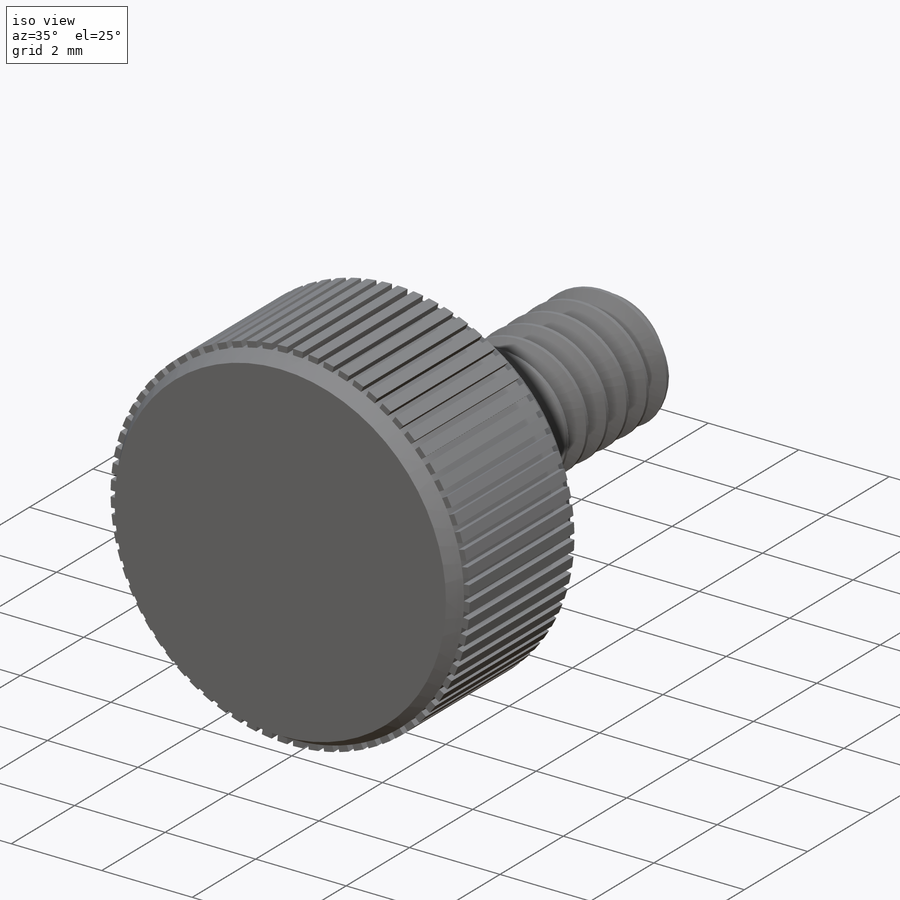
[diagram: iso view]
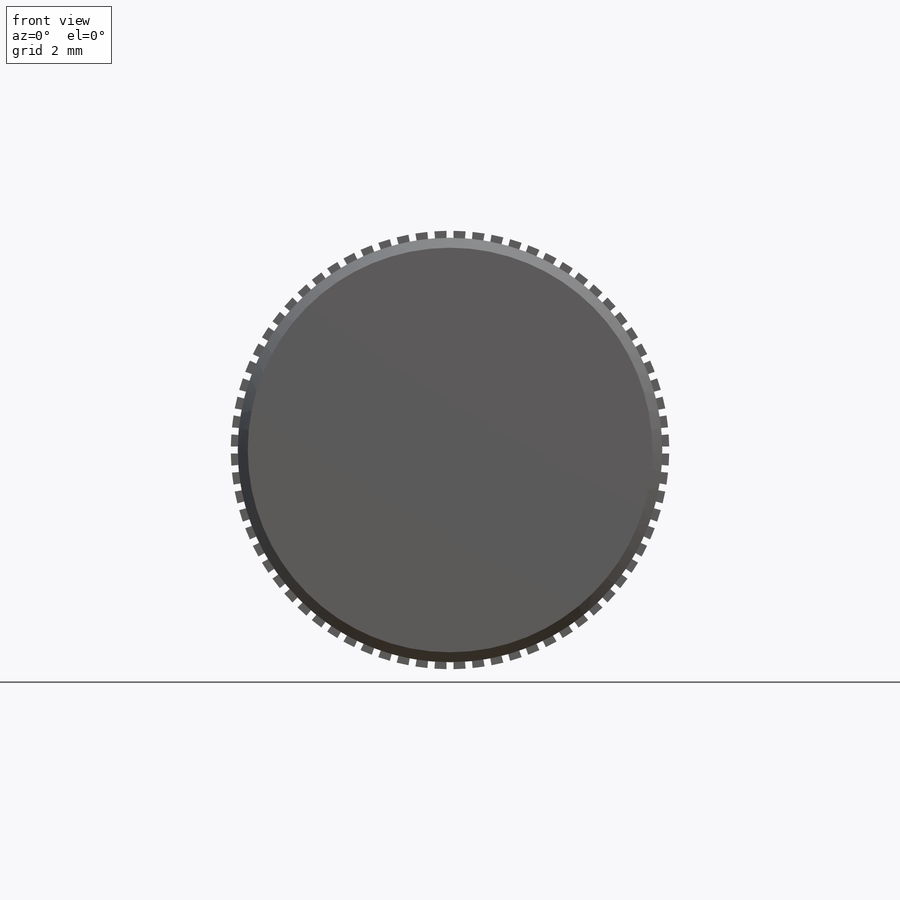
[diagram: front view]
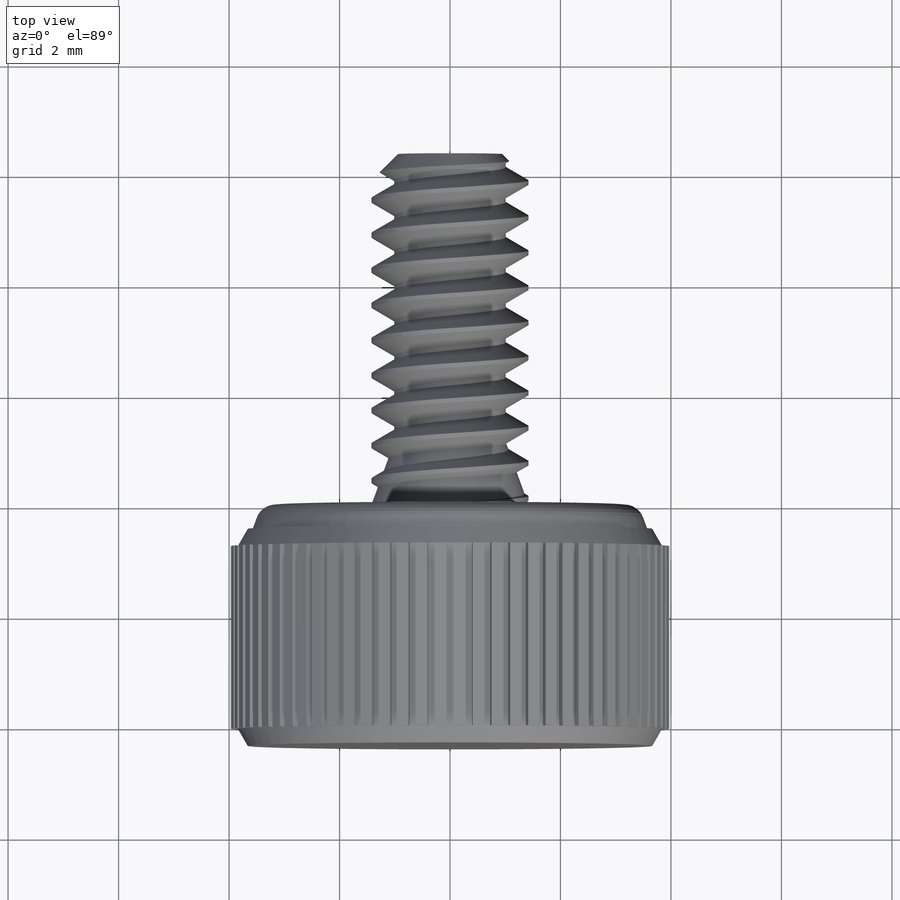
[diagram: top view]
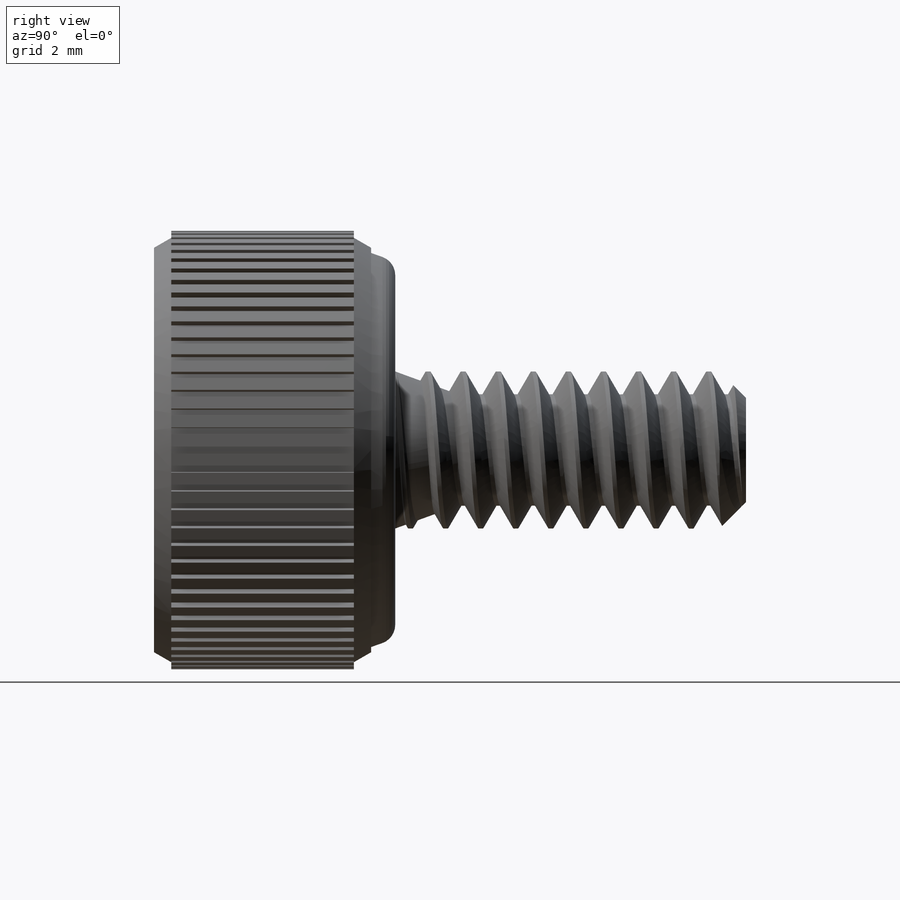
[diagram: right view]
SOLIDWORKS PART (.sldprt)
format: sldprt  version: not decoded by parser v0  size: 1,278,976 bytes
history: native  units: mm
features: sketch x9, extrude x4, material x1, chamfer x1, helix x1, sweep x1, fillet x1, plane x1, cut_extrude x1, pattern_circular x1, cut_revolve x1 (+14 scaffold rows collapsed)
feature tree (36):
  scaffold x14  (default folders/planes/origin — collapsed)
  material  "Material <not specified>"
  sketch  "Sketch20"  dims[c1.D1=2.8448mm c1.D2=6.35mm c1.Head Dia=15.875mm c1.Head Height=4.7625mm c1.D3=2.8575mm c1.D4=~0.529167mm c1.D5=~0.529167mm c1.Shoulder Diameter=~7.14375mm c1.Shoulder Length=3.175mm c1.Head Diameter=7.9375mm c2.Head Height=~4.365625mm]
  sketch  "Sketch1"  dims[dia=2.8448mm]
  extrude  "Extrude1"  Depth=6.35mm Lg=6.35mm
  chamfer  "Chamfer2"  Distance=0.47625mm Angle=45deg
  sketch  "Sketch15"  dims[D1=0.0mm]
  helix  "Helix/Spiral1"  Pitch=6.985mm pitch=0.635mm
  sketch  "Sketch14"  dims[c1.D1=~0.079375mm c1.D2=0.3175mm c1.D3=~0.901946mm c2.D3=60.0deg]
  sweep  "Cut-Sweep1"
  sketch  "Sketch27"
  extrude  "Boss-Extrude4"  Depth=0.436563mm
  sketch  "Sketch30"
  extrude  "Boss-Extrude5"  [1 undecoded]
  fillet  "Fillet1"  Radius=0.34925mm
  sketch  "Sketch21"  dims[D1=1.5875mm]
  extrude  "Boss-Extrude1"  [1 undecoded]
  plane  "Plane1"
  sketch  "Sketch22"  dims[c1.D3=~2.565764mm c1.D4=~2.565764mm c1.D1=0.254mm c1.D2=0.254mm c2.D1=0.127mm c2.D2=0.127mm]
  cut_extrude  "Cut-Extrude1"  Depth=0.127mm
  pattern_circular  "CirPattern1"  Count=72 Angle=5deg
  sketch  "Sketch29"  dims[c1.D1=0.127mm c1.D2=~2.525981mm c2.D2=30.0deg c2.D3=0.127mm c2.D4=~0.31183mm]
  cut_revolve  "Cut-Revolve1"  Angle=360deg
decode coverage: 15 of 20 modeling features carry decoded parameters
note: ~ marks probable driven/reference dimensions
note: 2 parameter values undecoded
note: suppression state not decoded; provenance and decode notes live in map.json
